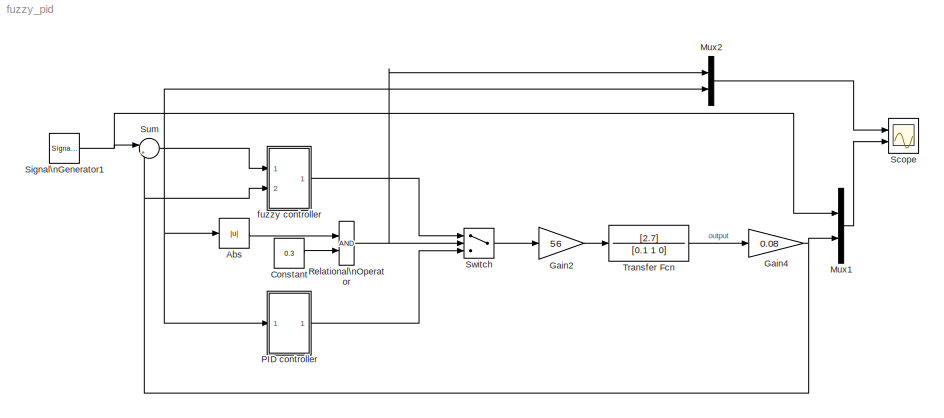
MODEL fuzzy_pid
KIND model
BLOCK [Abs] Abs
  SampleTime = -1
  SaturateOnIntegerOverflow = on
  ZeroCross = on
BLOCK [Constant] Constant
  ConRadixGroup = Use specified scaling
  FramePeriod = inf
  OutDataType = sfix(16)
  OutDataTypeMode = Inherit from 'Constant value'
  OutScaling = 2^0
  SampleTime = inf
  SamplingMode = Sample based
  Value = 0.3
  VectorParams1D = on
BLOCK [Gain] Gain2
  Gain = 56
BLOCK [Gain] Gain4
  Gain = 0.08
BLOCK [Mux] Mux1
  DisplayOption = bar
  Inputs = 2
  Ports = [2, 1]
BLOCK [Mux] Mux2
  DisplayOption = bar
  Inputs = 2
  Ports = [2, 1]
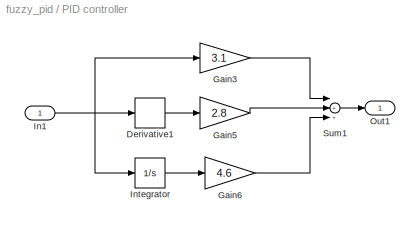
BLOCK [SubSystem] PID controller 
  FunctionWithSeparateData = off
  MaskHideContents = off
  MinAlgLoopOccurrences = off
  Ports = [1, 1]
  RTWSystemCode = Auto
BLOCK [Derivative] PID controller /Derivative1
BLOCK [Gain] PID controller /Gain3
  Gain = 3.1
BLOCK [Gain] PID controller /Gain5
  Gain = 2.8
BLOCK [Gain] PID controller /Gain6
  Gain = 4.6
BLOCK [Inport] PID controller /In1
  IconDisplay = Port number
BLOCK [Integrator] PID controller /Integrator
  IgnoreLimit = off
  Ports = [1, 1]
BLOCK [Outport] PID controller /Out1
  BusOutputAsStruct = off
  IconDisplay = Port number
BLOCK [Sum] PID controller /Sum1
  Inputs = |+++
  Ports = [3, 1]
BLOCK [RelationalOperator] Relational\nOperator
BLOCK [Scope] Scope
  DataFormat = StructureWithTime
  Floating = off
  MaxDataPoints = 30000
  NumInputPorts = 2
  Ports = [2]
  SampleTime = 0
  TimeRange = 0.1
  YMax = 1~1
  YMin = 0.935~5.55112e-017
  ZoomMode = xonly
BLOCK [SignalGenerator] Signal\nGenerator1
  Ports = [0, 1]
  Units = rad/sec
BLOCK [Sum] Sum
  IconShape = round
  Inputs = |+-
  Ports = [2, 1]
BLOCK [Switch] Switch
  Threshold = 1
BLOCK [TransferFcn] Transfer Fcn
  Denominator = [0.1 1 0]
  Numerator = [2.7]
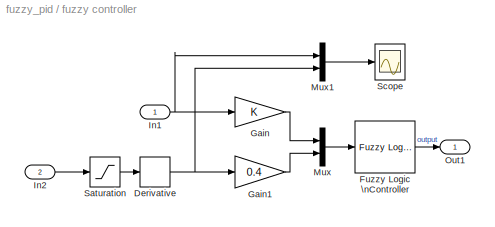
BLOCK [SubSystem] fuzzy controller
  FunctionWithSeparateData = off
  MaskHideContents = off
  MinAlgLoopOccurrences = off
  Ports = [2, 1]
  RTWSystemCode = Auto
BLOCK [Derivative] fuzzy controller/Derivative
BLOCK [Reference] fuzzy controller/Fuzzy Logic \nController  REF=fuzblock/Fuzzy Logic \nController  (lib defined in mdl_858b3b3e7478)
  FunctionWithSeparateData = off
  Ports = [1, 1]
  RTWMemSecDataConstants = Inherit from model
  RTWMemSecDataInternal = Inherit from model
  RTWMemSecDataParameters = Inherit from model
  RTWMemSecFuncExecute = Inherit from model
  RTWMemSecFuncInitTerm = Inherit from model
  ShowPortLabels = on
  SourceBlock = fuzblock/Fuzzy Logic \nController
  SourceType = FIS
  SystemSampleTime = -1
  fis = demo1
BLOCK [Gain] fuzzy controller/Gain
BLOCK [Gain] fuzzy controller/Gain1
  Gain = 0.4
BLOCK [Inport] fuzzy controller/In1
  IconDisplay = Port number
BLOCK [Inport] fuzzy controller/In2
  IconDisplay = Port number
  Port = 2
BLOCK [Mux] fuzzy controller/Mux
  DisplayOption = bar
  Inputs = 2
  Ports = [2, 1]
BLOCK [Mux] fuzzy controller/Mux1
  DisplayOption = bar
  Inputs = 2
  Ports = [2, 1]
BLOCK [Outport] fuzzy controller/Out1
  BusOutputAsStruct = off
  IconDisplay = Port number
BLOCK [Saturate] fuzzy controller/Saturation
  LowerLimit = -10
  UpperLimit = 10
BLOCK [Scope] fuzzy controller/Scope
  DataFormat = StructureWithTime
  Floating = off
  MaxDataPoints = 30000
  NumInputPorts = 1
  Ports = [1]
  SampleTime = 0
  SaveName = ScopeData1
  TimeRange = 1
  YMax = 2.5
  YMin = 0
  ZoomMode = xonly
LINE Abs:1 -> Relational\nOperator:1
LINE Constant:1 -> Relational\nOperator:2
LINE Gain2:1 -> Transfer Fcn:1
NET Gain4:1 -> Mux1:2, Sum:2, fuzzy controller:2
LINE Mux1:1 -> Scope:2
LINE Mux2:1 -> Scope:1
LINE PID controller /Derivative1:1 -> PID controller /Gain5:1
LINE PID controller /Gain3:1 -> PID controller /Sum1:1
LINE PID controller /Gain5:1 -> PID controller /Sum1:2
LINE PID controller /Gain6:1 -> PID controller /Sum1:3
NET PID controller /In1:1 -> PID controller /Derivative1:1, PID controller /Gain3:1, PID controller /Integrator:1
LINE PID controller /Integrator:1 -> PID controller /Gain6:1
LINE PID controller /Sum1:1 -> PID controller /Out1:1
LINE PID controller :1 -> Switch:3
NET Relational\nOperator:1 -> Mux2:1, Switch:2
NET Signal\nGenerator1:1 -> Mux1:1, Sum:1
NET Sum:1 -> Abs:1, Mux2:2, PID controller :1, fuzzy controller:1
LINE Switch:1 -> Gain2:1
LINE Transfer Fcn:1 -> Gain4:1
NET fuzzy controller/Derivative:1 -> fuzzy controller/Gain1:1, fuzzy controller/Mux1:2
LINE fuzzy controller/Fuzzy Logic \nController:1 -> fuzzy controller/Out1:1
LINE fuzzy controller/Gain1:1 -> fuzzy controller/Mux:2
LINE fuzzy controller/Gain:1 -> fuzzy controller/Mux:1
NET fuzzy controller/In1:1 -> fuzzy controller/Gain:1, fuzzy controller/Mux1:1
LINE fuzzy controller/In2:1 -> fuzzy controller/Saturation:1
LINE fuzzy controller/Mux1:1 -> fuzzy controller/Scope:1
LINE fuzzy controller/Mux:1 -> fuzzy controller/Fuzzy Logic \nController:1
LINE fuzzy controller/Saturation:1 -> fuzzy controller/Derivative:1
LINE fuzzy controller:1 -> Switch:1
note: NET lines group one-source signal fan-out (src -> all destinations, sorted); 1:1 wires keep LINE
